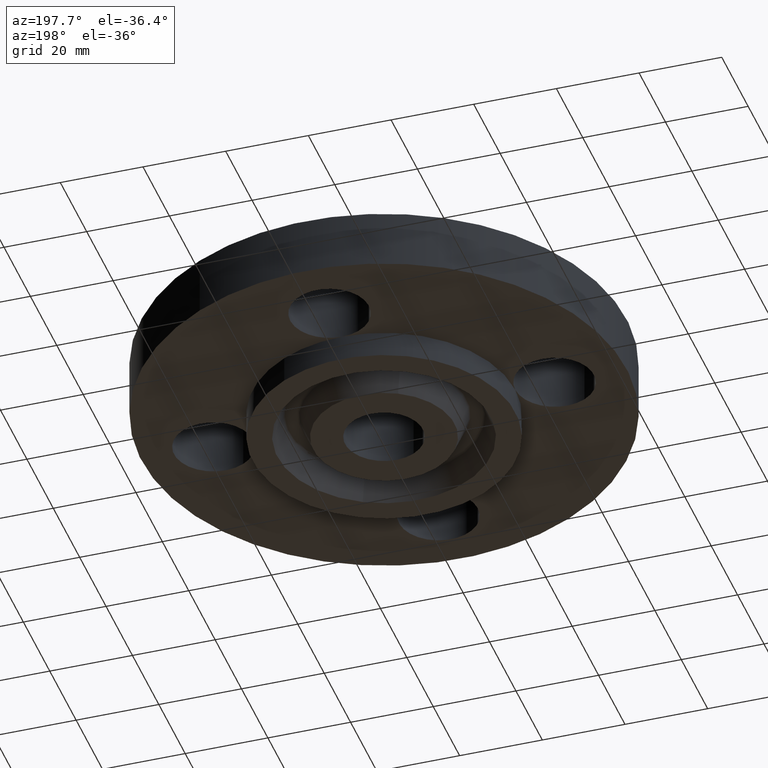
[diagram: clean part render]
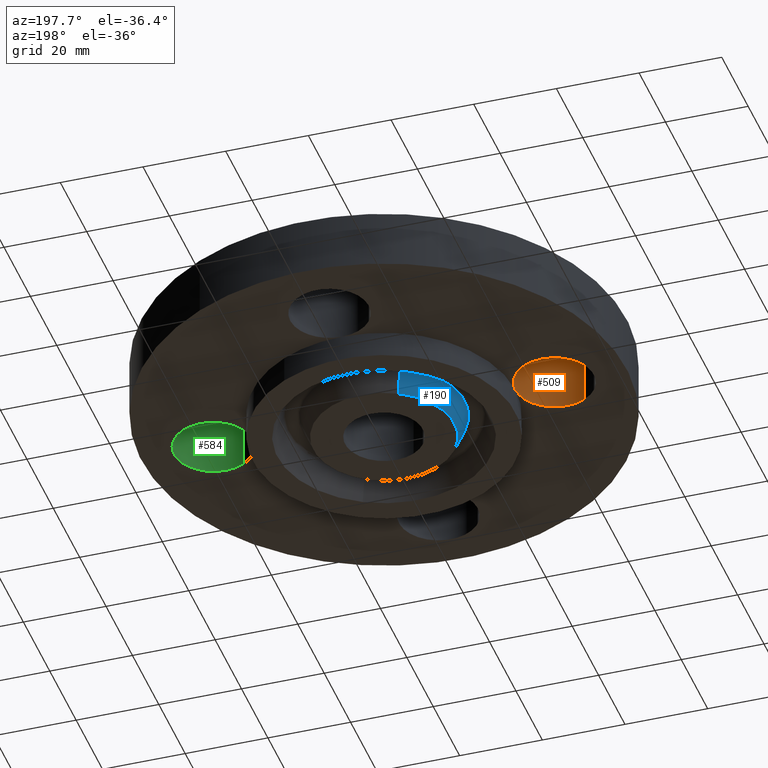
[diagram: same view with three faces highlighted in distinct colors, each labeled with its STEP entity id]
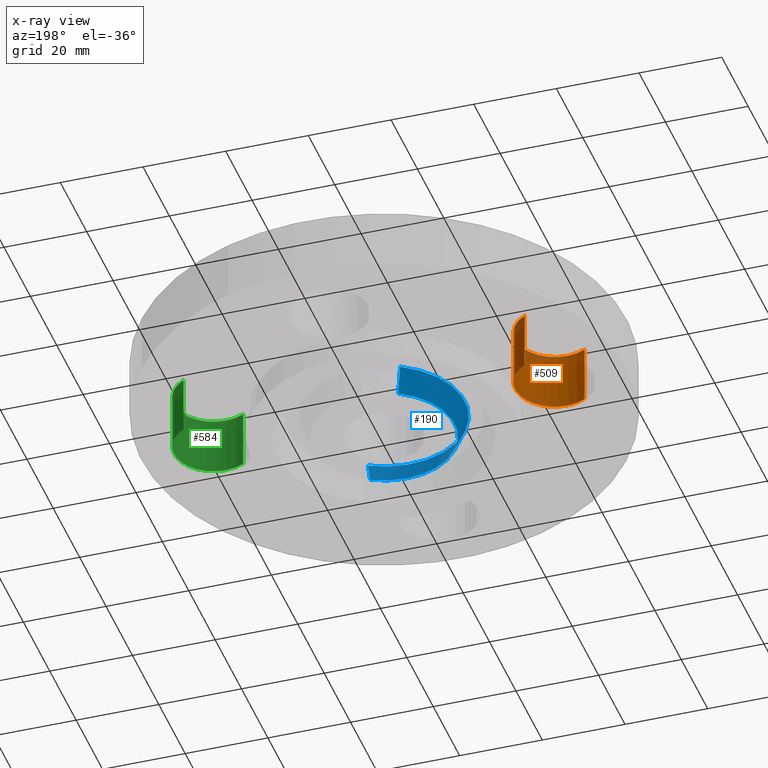
[diagram: x-ray of the same camera — body ghosted, the three highlighted faces saturated]
A machine part, auxiliary view with three faces highlighted in distinct colors.
The next image is the same camera in x-ray (body ghosted, the three faces saturated) — at least one of them is partly hidden behind the body in this view.
Their STEP definitions:

[orange] entity #509 — the highlighted cylindrical surface (partial cylindrical patch) has radius 9.525 mm, axis along (0, 0, -1).
#385=AXIS2_PLACEMENT_3D('Circle Axis2P3D',#383,#384,$) ;
#399=AXIS2_PLACEMENT_3D('Circle Axis2P3D',#397,#398,$) ;
#469=AXIS2_PLACEMENT_3D('Cylinder Axis2P3D',#466,#467,#468) ;
#499=AXIS2_PLACEMENT_3D('Circle Axis2P3D',#497,#498,$) ;
#244=CARTESIAN_POINT('Vertex',(-1.25000000001,-1.39870617276E-016,0.)) ;
#383=CARTESIAN_POINT('Axis2P3D Location',(-1.62500000001,-2.79741234551E-016,0.)) ;
#387=CARTESIAN_POINT('Vertex',(-1.44521542303,0.32909346071,6.99353086378E-017)) ;
#394=CARTESIAN_POINT('Vertex',(-1.80478457698,-0.32909346071,0.)) ;
#397=CARTESIAN_POINT('Axis2P3D Location',(-1.62500000001,-2.79741234551E-016,0.)) ;
#466=CARTESIAN_POINT('Axis2P3D Location',(-1.62500000001,-2.98507657293E-016,0.556062992128)) ;
#471=CARTESIAN_POINT('Line Origine',(-1.80478457698,-0.32909346071,0.280000000001)) ;
#475=CARTESIAN_POINT('Vertex',(-1.80478457698,-0.32909346071,0.560000000002)) ;
#478=CARTESIAN_POINT('Line Origine',(-1.44521542303,0.32909346071,0.280000000001)) ;
#482=CARTESIAN_POINT('Vertex',(-1.44521542303,0.32909346071,0.560000000002)) ;
#497=CARTESIAN_POINT('Axis2P3D Location',(-1.62500000001,-2.98507657293E-016,0.560000000002)) ;
#384=DIRECTION('Axis2P3D Direction',(0.,0.,-0.0393700787402)) ;
#398=DIRECTION('Axis2P3D Direction',(0.,0.,-0.0393700787402)) ;
#467=DIRECTION('Axis2P3D Direction',(0.,0.,-0.0393700787402)) ;
#468=DIRECTION('Axis2P3D XDirection',(0.0188750212049,0.0345504945626,0.)) ;
#472=DIRECTION('Vector Direction',(0.,0.,-0.0393700787402)) ;
#479=DIRECTION('Vector Direction',(0.,0.,-0.0393700787402)) ;
#498=DIRECTION('Axis2P3D Direction',(0.,0.,-0.0393700787402)) ;
#473=VECTOR('Line Direction',#472,0.0393700787402) ;
#480=VECTOR('Line Direction',#479,0.0393700787402) ;
#503=ORIENTED_EDGE('',*,*,#484,.F.) ;
#504=ORIENTED_EDGE('',*,*,#389,.T.) ;
#505=ORIENTED_EDGE('',*,*,#401,.T.) ;
#506=ORIENTED_EDGE('',*,*,#477,.T.) ;
#507=ORIENTED_EDGE('',*,*,#501,.F.) ;
#509=ADVANCED_FACE('PartBody',(#508),#470,.F.) ;
#386=CIRCLE('generated circle',#385,0.375000000001) ;
#400=CIRCLE('generated circle',#399,0.375000000001) ;
#500=CIRCLE('generated circle',#499,0.375000000001) ;
#470=CYLINDRICAL_SURFACE('generated cylinder',#469,0.375000000001) ;
#389=EDGE_CURVE('',#388,#245,#386,.T.) ;
#401=EDGE_CURVE('',#245,#395,#400,.T.) ;
#477=EDGE_CURVE('',#395,#476,#474,.F.) ;
#484=EDGE_CURVE('',#388,#483,#481,.F.) ;
#501=EDGE_CURVE('',#483,#476,#500,.T.) ;
#502=EDGE_LOOP('',(#503,#504,#505,#506,#507)) ;
#508=FACE_OUTER_BOUND('',#502,.T.) ;
#474=LINE('Line',#471,#473) ;
#481=LINE('Line',#478,#480) ;
#245=VERTEX_POINT('',#244) ;
#388=VERTEX_POINT('',#387) ;
#395=VERTEX_POINT('',#394) ;
#476=VERTEX_POINT('',#475) ;
#483=VERTEX_POINT('',#482) ;

[blue] entity #190 — the highlighted conical surface has half-angle 23 deg.
#136=AXIS2_PLACEMENT_3D('Circle Axis2P3D',#134,#135,$) ;
#151=AXIS2_PLACEMENT_3D('Cone Axis2P3D',#148,#149,#150) ;
#181=AXIS2_PLACEMENT_3D('Circle Axis2P3D',#179,#180,$) ;
#129=CARTESIAN_POINT('Vertex',(-0.322173961943,0.589735481593,-0.250000000001)) ;
#131=CARTESIAN_POINT('Vertex',(0.322173961943,-0.589735481593,-0.250000000001)) ;
#134=CARTESIAN_POINT('Axis2P3D Location',(2.09805925913E-016,0.,-0.250000000001)) ;
#148=CARTESIAN_POINT('Axis2P3D Location',(0.,0.,-0.310000000001)) ;
#153=CARTESIAN_POINT('Line Origine',(-0.345690145618,0.63278156707,-0.134443667509)) ;
#157=CARTESIAN_POINT('Vertex',(-0.369206329292,0.675827652547,-0.0188873350169)) ;
#164=CARTESIAN_POINT('Vertex',(0.369206329292,-0.675827652547,-0.0188873350169)) ;
#167=CARTESIAN_POINT('Line Origine',(0.345690145618,-0.63278156707,-0.134443667509)) ;
#179=CARTESIAN_POINT('Axis2P3D Location',(0.,0.,-0.0188873350169)) ;
#135=DIRECTION('Axis2P3D Direction',(0.,0.,-0.0393700787402)) ;
#149=DIRECTION('Axis2P3D Direction',(0.,0.,0.0393700787402)) ;
#150=DIRECTION('Axis2P3D XDirection',(-0.0188750212049,0.0345504945626,0.)) ;
#154=DIRECTION('Vector Direction',(-0.00737505833565,0.0134999537303,0.0362403485611)) ;
#168=DIRECTION('Vector Direction',(0.00737505833565,-0.0134999537303,0.0362403485611)) ;
#180=DIRECTION('Axis2P3D Direction',(0.,0.,0.0393700787402)) ;
#155=VECTOR('Line Direction',#154,0.0393700787402) ;
#169=VECTOR('Line Direction',#168,0.0393700787402) ;
#185=ORIENTED_EDGE('',*,*,#171,.F.) ;
#186=ORIENTED_EDGE('',*,*,#183,.F.) ;
#187=ORIENTED_EDGE('',*,*,#159,.T.) ;
#188=ORIENTED_EDGE('',*,*,#138,.F.) ;
#190=ADVANCED_FACE('PartBody',(#189),#152,.T.) ;
#137=CIRCLE('generated circle',#136,0.672000000003) ;
#182=CIRCLE('generated circle',#181,0.770101505996) ;
#152=CONICAL_SURFACE('Cone',#151,0.64653151103,0.401425727959) ;
#138=EDGE_CURVE('',#132,#130,#137,.T.) ;
#159=EDGE_CURVE('',#158,#130,#156,.F.) ;
#171=EDGE_CURVE('',#165,#132,#170,.F.) ;
#183=EDGE_CURVE('',#158,#165,#182,.T.) ;
#184=EDGE_LOOP('',(#185,#186,#187,#188)) ;
#189=FACE_OUTER_BOUND('',#184,.T.) ;
#156=LINE('Line',#153,#155) ;
#170=LINE('Line',#167,#169) ;
#130=VERTEX_POINT('',#129) ;
#132=VERTEX_POINT('',#131) ;
#158=VERTEX_POINT('',#157) ;
#165=VERTEX_POINT('',#164) ;

[green] entity #584 — the highlighted cylindrical surface (partial cylindrical patch) has radius 9.525 mm, axis along (0, -0, -1).
#354=AXIS2_PLACEMENT_3D('Circle Axis2P3D',#352,#353,$) ;
#557=AXIS2_PLACEMENT_3D('Cylinder Axis2P3D',#554,#555,#556) ;
#575=AXIS2_PLACEMENT_3D('Circle Axis2P3D',#573,#574,$) ;
#349=CARTESIAN_POINT('Vertex',(1.44521542303,-0.32909346071,6.99353086378E-017)) ;
#352=CARTESIAN_POINT('Axis2P3D Location',(1.62500000001,-1.39870617276E-016,0.)) ;
#356=CARTESIAN_POINT('Vertex',(1.80478457698,0.32909346071,0.)) ;
#554=CARTESIAN_POINT('Axis2P3D Location',(1.62500000001,-1.8023868212E-016,0.556062992128)) ;
#559=CARTESIAN_POINT('Line Origine',(1.80478457698,0.32909346071,0.280000000001)) ;
#563=CARTESIAN_POINT('Vertex',(1.80478457698,0.32909346071,0.560000000002)) ;
#566=CARTESIAN_POINT('Line Origine',(1.44521542303,-0.32909346071,0.280000000001)) ;
#570=CARTESIAN_POINT('Vertex',(1.44521542303,-0.32909346071,0.560000000002)) ;
#573=CARTESIAN_POINT('Axis2P3D Location',(1.62500000001,-1.8023868212E-016,0.560000000002)) ;
#353=DIRECTION('Axis2P3D Direction',(0.,0.,-0.0393700787402)) ;
#555=DIRECTION('Axis2P3D Direction',(0.,-0.,-0.0393700787402)) ;
#556=DIRECTION('Axis2P3D XDirection',(-0.0188750212049,-0.0345504945626,0.)) ;
#560=DIRECTION('Vector Direction',(0.,0.,-0.0393700787402)) ;
#567=DIRECTION('Vector Direction',(0.,0.,-0.0393700787402)) ;
#574=DIRECTION('Axis2P3D Direction',(0.,-0.,-0.0393700787402)) ;
#561=VECTOR('Line Direction',#560,0.0393700787402) ;
#568=VECTOR('Line Direction',#567,0.0393700787402) ;
#579=ORIENTED_EDGE('',*,*,#565,.F.) ;
#580=ORIENTED_EDGE('',*,*,#358,.T.) ;
#581=ORIENTED_EDGE('',*,*,#572,.T.) ;
#582=ORIENTED_EDGE('',*,*,#577,.F.) ;
#584=ADVANCED_FACE('PartBody',(#583),#558,.F.) ;
#355=CIRCLE('generated circle',#354,0.375000000001) ;
#576=CIRCLE('generated circle',#575,0.375000000001) ;
#558=CYLINDRICAL_SURFACE('generated cylinder',#557,0.375000000001) ;
#358=EDGE_CURVE('',#357,#350,#355,.T.) ;
#565=EDGE_CURVE('',#357,#564,#562,.F.) ;
#572=EDGE_CURVE('',#350,#571,#569,.F.) ;
#577=EDGE_CURVE('',#564,#571,#576,.T.) ;
#578=EDGE_LOOP('',(#579,#580,#581,#582)) ;
#583=FACE_OUTER_BOUND('',#578,.T.) ;
#562=LINE('Line',#559,#561) ;
#569=LINE('Line',#566,#568) ;
#350=VERTEX_POINT('',#349) ;
#357=VERTEX_POINT('',#356) ;
#564=VERTEX_POINT('',#563) ;
#571=VERTEX_POINT('',#570) ;